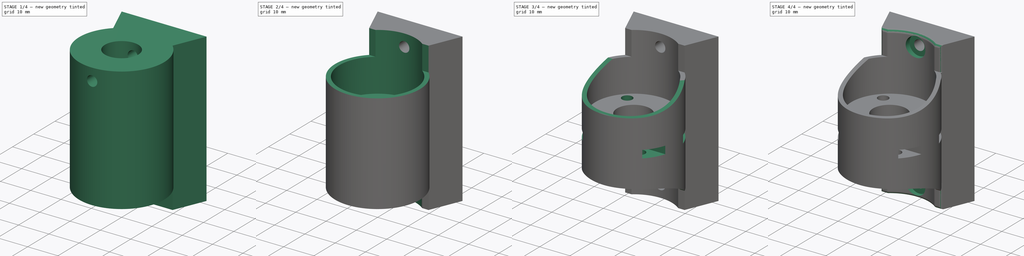
[diagram: build sequence overview — one tinted view per stage of 4, left to right]
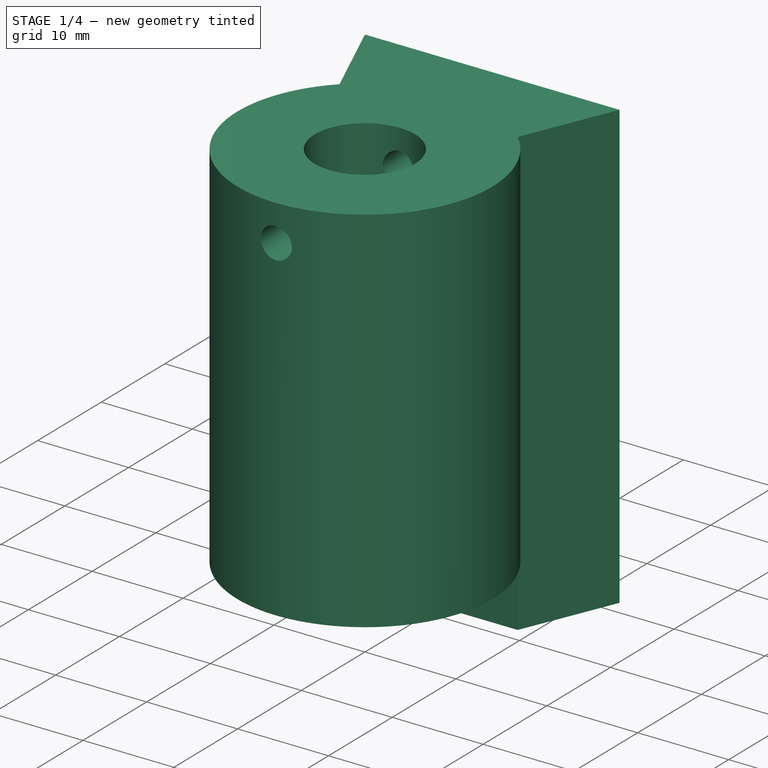
[diagram: stage 1 of 4 — iso view after this stage's code; geometry added in this stage tinted green]
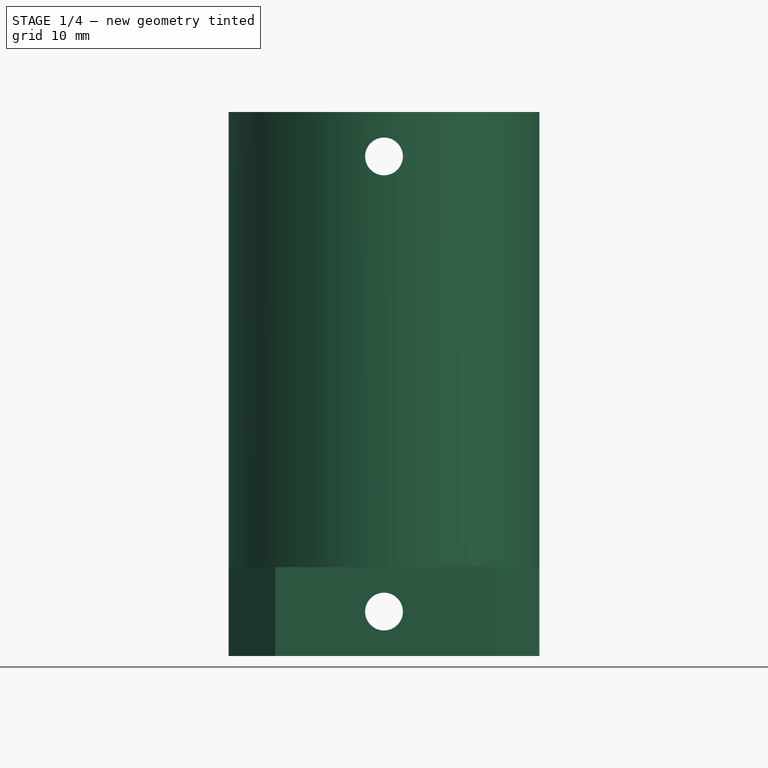
[diagram: stage 1 of 4 — front view after this stage's code; geometry added in this stage tinted green]
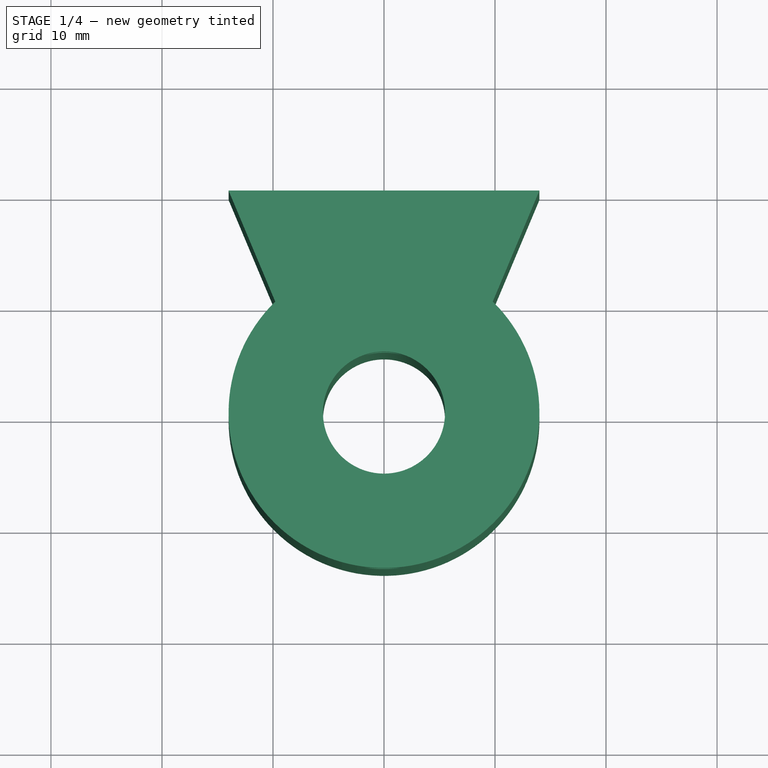
[diagram: stage 1 of 4 — top view after this stage's code; geometry added in this stage tinted green]
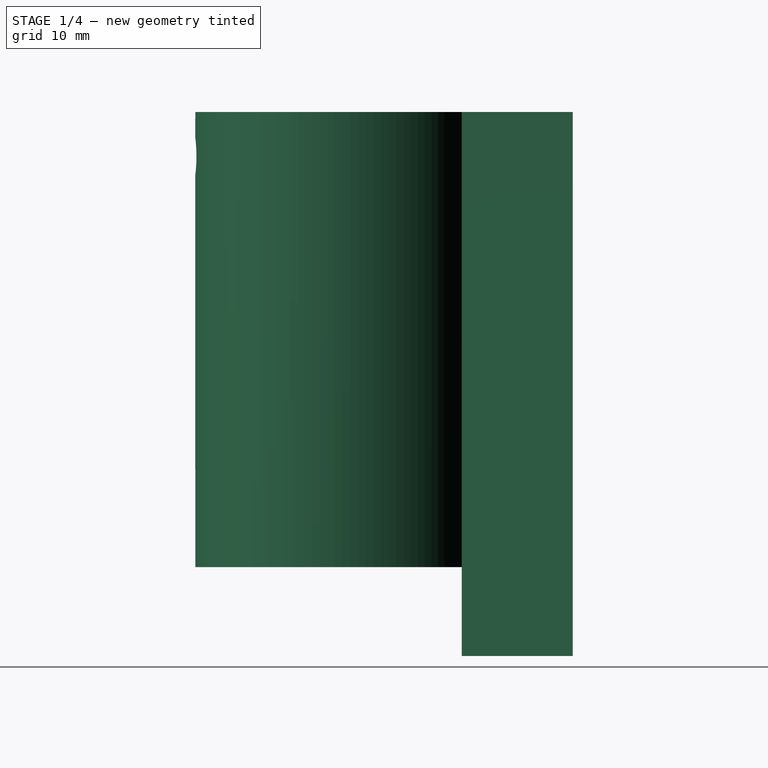
[diagram: stage 1 of 4 — right view after this stage's code; geometry added in this stage tinted green]
FCSTD DOCUMENT  (FreeCAD 0.19R21938 (Git))
Label: carriage-adapter
License: All rights reserved
LicenseURL: http://en.wikipedia.org/wiki/All_rights_reserved
objects: Sketcher::SketchObject×11, PartDesign::Pocket×9, PartDesign::Fillet×2, PartDesign::Pad×1, PartDesign::Body×1
note: 36 computed .brp shape members not serialized (recipe doc carries the construction recipe); baked Part::Feature solids carry a one-line shape summary decoded from their .brp

FEATURE [Sketcher::SketchObject] Sketch018
  AttachmentOffset = pos=(0,0,-50) rot=(0,0,1;0rad)
  MapMode = 5
  Placement = pos=(-50,1.11e-14,-1.11e-14) rot=(0.57735,0.57735,0.57735;2.0944rad)
  Support = -> [YZ_Plane001]
  sketch-geometry (10):
    g0: ArcOfCircle CenterX=-13 CenterY=68.0833 CenterZ=0 NormalX=0 NormalY=0 NormalZ=1 AngleXU=0 Radius=33.0833 StartAngle=0.802079 EndAngle=5.48111
    g1: GeomPoint X=-13 Y=30 Z=0
    g2: GeomPoint X=11 Y=41 Z=0
    g3: GeomPoint X=-13 Y=35 Z=0
    g4: GeomPoint X=6 Y=41 Z=0
    g5: ArcOfCircle CenterX=-13 CenterY=-19.0833 CenterZ=0 NormalX=0 NormalY=0 NormalZ=1 AngleXU=0 Radius=33.0833 StartAngle=0.802079 EndAngle=5.48111
    g6: GeomPoint X=-13 Y=19 Z=0
    g7: GeomPoint X=-13 Y=14 Z=0
    g8: LineSegment StartX=10 StartY=44.3029 StartZ=0 EndX=10 EndY=91.8637 EndZ=0
    g9: LineSegment StartX=10 StartY=4.69706 StartZ=0 EndX=10 EndY=-42.8637 EndZ=0
  constraints (27):
    c: DistanceY(g1,g2) = 11
    c: DistanceX(g1,g2) = 24
    c: DistanceX(g0,g1) = 0
    c: PointOnObject(g3,g0)
    c: DistanceX(g3,g1) = 0
    c: DistanceY(g1,g3) = 5
    c: PointOnObject(g4,g0)
    c: DistanceY(g4,g2) = 0
    c: DistanceX(g4,g2) = 5
    c: DistanceX(g5,g0) = 0
    c: Equal(g5,g0)
    c: DistanceX(g6,g1) = 0
    c: DistanceY(g6,g1) = 11
    c: PointOnObject(g7,g5)
    c: DistanceY(g7,g6) = 5
    c: DistanceX(g6,g7) = 0
    c: Vertical(g8)
    c: Coincident(g0,g8)
    c: Coincident(g0,g8)
    c: Coincident(g0,g8)
    c: DistanceX(g3,g0) = 23
    c: Vertical(g9)
    c: Coincident(g5,g9)
    c: Coincident(g5,g9)
    c: DistanceX(g5,g0) = 0
    c: DistanceX(g-1,g5) = 10
    c: DistanceY(g-1,g6) = 19
FEATURE [Sketcher::SketchObject] Sketch007
  MapMode = 5
  Support = -> [XY_Plane001]
  sketch-geometry (6):
    g0: GeomPoint X=0 Y=0 Z=0
    g1: ArcOfCircle CenterX=0 CenterY=0 CenterZ=0 NormalX=0 NormalY=0 NormalZ=1 AngleXU=0 Radius=14 StartAngle=2.34599 EndAngle=7.07879
    g2: LineSegment StartX=-14 StartY=20 StartZ=0 EndX=14 EndY=20 EndZ=0
    g3: LineSegment StartX=-14 StartY=20 StartZ=0 EndX=-9.79796 EndY=10 EndZ=0
    g4: LineSegment StartX=14 StartY=20 StartZ=0 EndX=9.79796 EndY=10 EndZ=0
    g5: Circle CenterX=0 CenterY=0 CenterZ=0 NormalX=0 NormalY=0 NormalZ=1 AngleXU=0 Radius=5.5
  constraints (16):
    c: Coincident(g1,g0)
    c: Diameter(g1) = 28
    c: Horizontal(g2)
    c: DistanceX(g2,g2) = 28
    c: DistanceX(g2,g0) = 14
    c: Coincident(g3,g2)
    c: Coincident(g4,g2)
    c: Coincident(g1,g3)
    c: Coincident(g1,g4)
    c: DistanceY(g1,g1) = 0
    c: Coincident(g5,g0)
    c: Diameter(g5) = 11
    c: DistanceY(g1,g2) = 10
    c: PointOnObject(g0,g-1)
    c: PointOnObject(g0,g-2)
    c: DistanceY(g0,g2) = 20
FEATURE [PartDesign::Pad] Pad001
  AllowMultiFace = false
  Length = 49
  Length2 = 100
  Profile = -> Sketch007
  Type = 0
FEATURE [Sketcher::SketchObject] Sketch008
  MapMode = 5
  Support = -> [XY_Plane001]
  sketch-geometry (1):
    g0: Circle CenterX=0 CenterY=0 CenterZ=0 NormalX=0 NormalY=0 NormalZ=1 AngleXU=0 Radius=12.625
  constraints (2):
    c: Diameter(g0) = 25.25
    c: Coincident(g-1,g0)
FEATURE [Sketcher::SketchObject] Sketch009
  AttachmentOffset = pos=(0,0,49) rot=(0,0,1;0rad)
  MapMode = 5
  Placement = pos=(0,0,49) rot=(0,0,1;0rad)
  Support = -> [XY_Plane001]
  sketch-geometry (1):
    g0: Circle CenterX=0 CenterY=0 CenterZ=0 NormalX=0 NormalY=0 NormalZ=1 AngleXU=0 Radius=12.625
  constraints (2):
    c: Diameter(g0) = 25.25
    c: Coincident(g-1,g0)
FEATURE [Sketcher::SketchObject] Sketch010
  AttachmentOffset = pos=(0,0,-50) rot=(0,0,1;0rad)
  MapMode = 5
  Placement = pos=(0,50,1.11e-14) rot=(1,0,0;1.5708rad)
  Support = -> [XZ_Plane001]
  sketch-geometry (2):
    g0: Circle CenterX=0 CenterY=4 CenterZ=0 NormalX=0 NormalY=0 NormalZ=1 AngleXU=0 Radius=1.7
    g1: Circle CenterX=0 CenterY=45 CenterZ=0 NormalX=0 NormalY=0 NormalZ=1 AngleXU=0 Radius=1.7
  constraints (6):
    c: DistanceX(g1,g0) = 0
    c: Diameter(g0) = 3.4
    c: Equal(g1,g0)
    c: DistanceX(g-1,g0) = 0
    c: DistanceY(g0,g1) = 41
    c: DistanceY(g-1,g0) = 4
FEATURE [PartDesign::Pocket] Pocket007
  AllowMultiFace = false
  BaseFeature = -> Pad001
  Length = 5
  Length2 = 100
  Profile = -> Sketch010
  Reversed = true
  Type = 1
FEATURE [Sketcher::SketchObject] Sketch012
  MapMode = 5
  Support = -> [XY_Plane001]
  sketch-geometry (2):
    g0: ArcOfCircle CenterX=0 CenterY=0 CenterZ=0 NormalX=0 NormalY=0 NormalZ=1 AngleXU=0 Radius=14 StartAngle=2.34599 EndAngle=7.07879
    g1: LineSegment StartX=-9.79796 StartY=10 StartZ=0 EndX=9.79796 EndY=10 EndZ=0
  constraints (6):
    c: Diameter(g0) = 28
    c: Horizontal(g1)
    c: Coincident(g0,g1)
    c: Coincident(g0,g1)
    c: DistanceY(g0,g0) = 10
    c: Coincident(g-1,g0)
FEATURE [PartDesign::Pocket] Pocket008
  AllowMultiFace = false
  BaseFeature = -> Pocket007
  Length = 8
  Length2 = 100
  Profile = -> Sketch012
  Reversed = true
  Type = 0
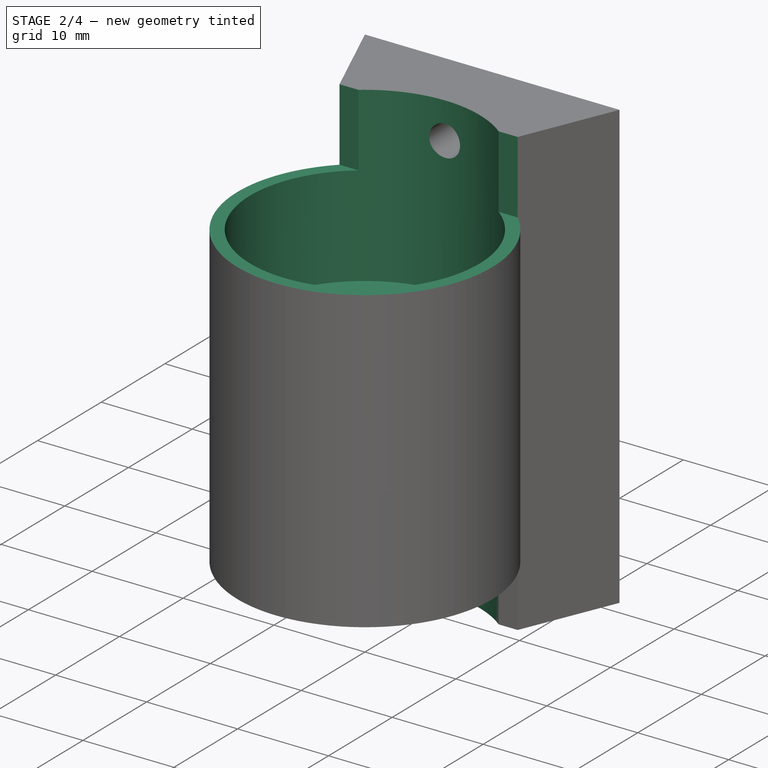
[diagram: stage 2 of 4 — iso view after this stage's code; geometry added in this stage tinted green]
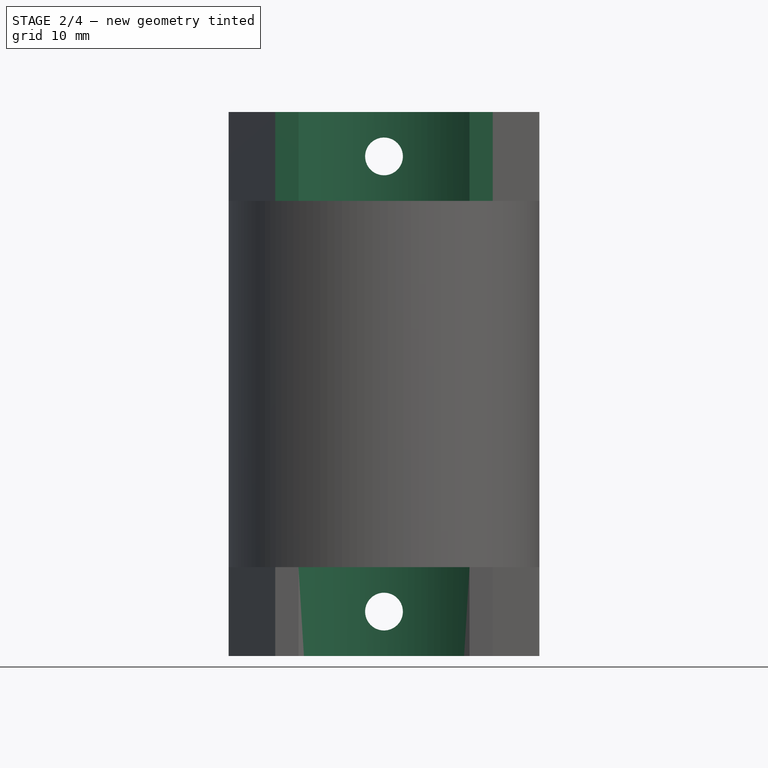
[diagram: stage 2 of 4 — front view after this stage's code; geometry added in this stage tinted green]
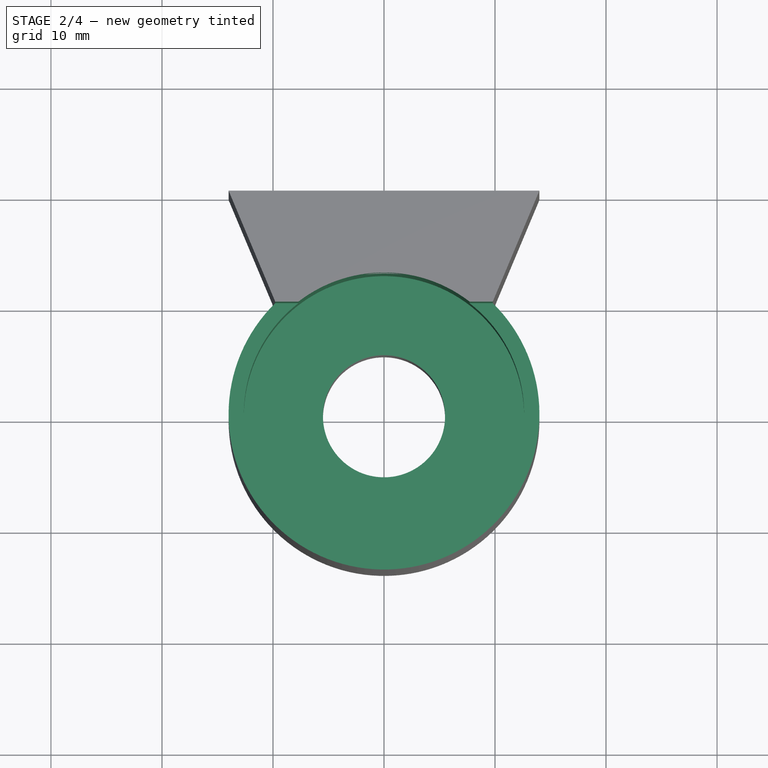
[diagram: stage 2 of 4 — top view after this stage's code; geometry added in this stage tinted green]
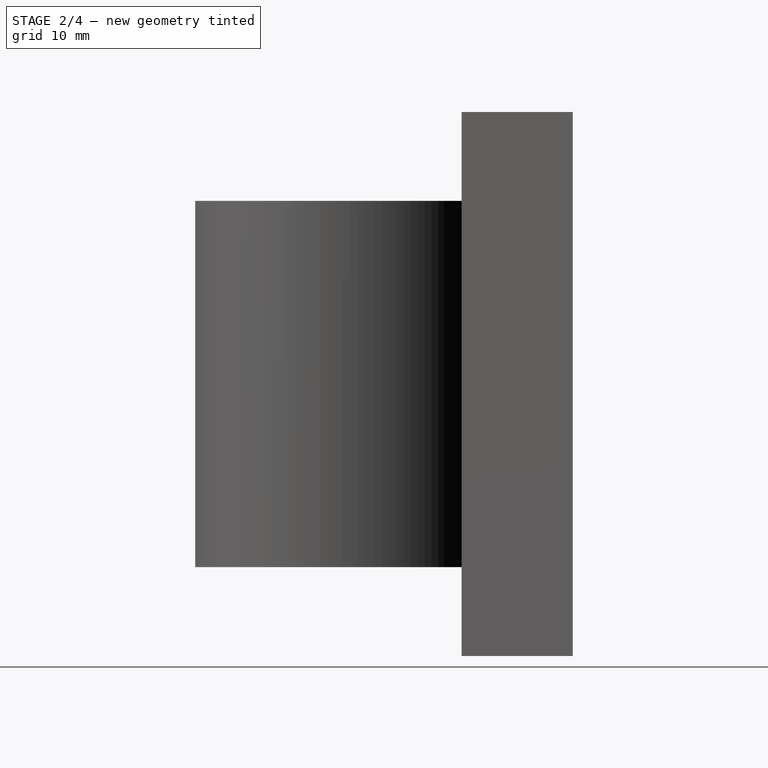
[diagram: stage 2 of 4 — right view after this stage's code; geometry added in this stage tinted green]
FEATURE [Sketcher::SketchObject] Sketch013
  AttachmentOffset = pos=(0,0,49) rot=(0,0,1;0rad)
  MapMode = 5
  Placement = pos=(0,0,49) rot=(0,0,1;0rad)
  Support = -> [XY_Plane001]
  sketch-geometry (2):
    g0: ArcOfCircle CenterX=0 CenterY=0 CenterZ=0 NormalX=0 NormalY=0 NormalZ=1 AngleXU=0 Radius=14 StartAngle=2.34599 EndAngle=7.07879
    g1: LineSegment StartX=-9.79796 StartY=10 StartZ=0 EndX=9.79796 EndY=10 EndZ=0
  constraints (6):
    c: Diameter(g0) = 28
    c: Horizontal(g1)
    c: Coincident(g0,g1)
    c: Coincident(g0,g1)
    c: DistanceY(g0,g0) = 10
    c: Coincident(g-1,g0)
FEATURE [PartDesign::Pocket] Pocket009
  AllowMultiFace = false
  BaseFeature = -> Pocket008
  Length = 8
  Length2 = 100
  Profile = -> Sketch013
  Type = 0
FEATURE [PartDesign::Pocket] Pocket010
  AllowMultiFace = false
  BaseFeature = -> Pocket009
  Length = 19
  Length2 = 100
  Profile = -> Sketch008
  Reversed = true
  Type = 0
FEATURE [PartDesign::Pocket] Pocket011
  AllowMultiFace = false
  BaseFeature = -> Pocket010
  Length = 19
  Length2 = 100
  Profile = -> Sketch009
  Type = 0
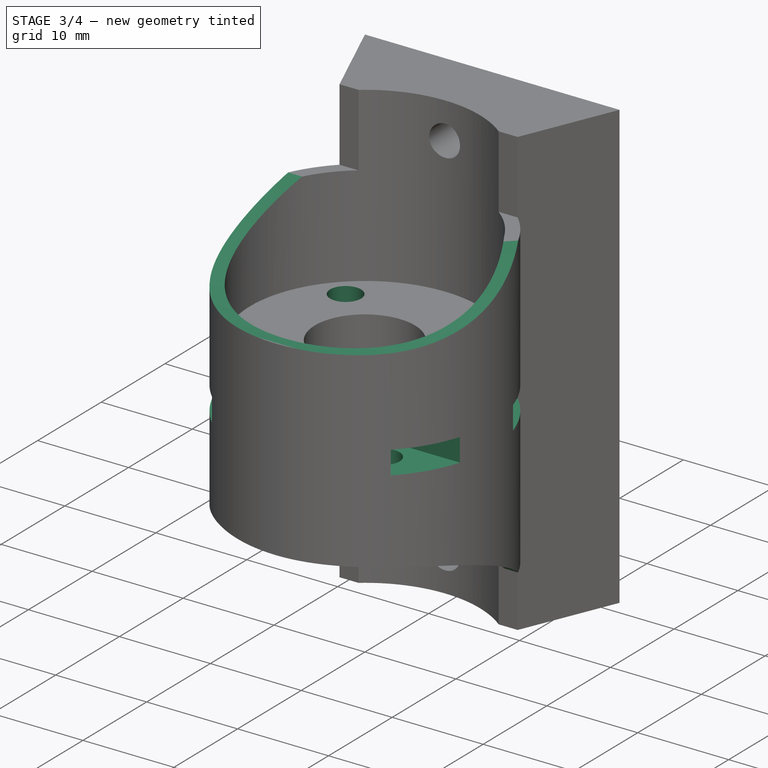
[diagram: stage 3 of 4 — iso view after this stage's code; geometry added in this stage tinted green]
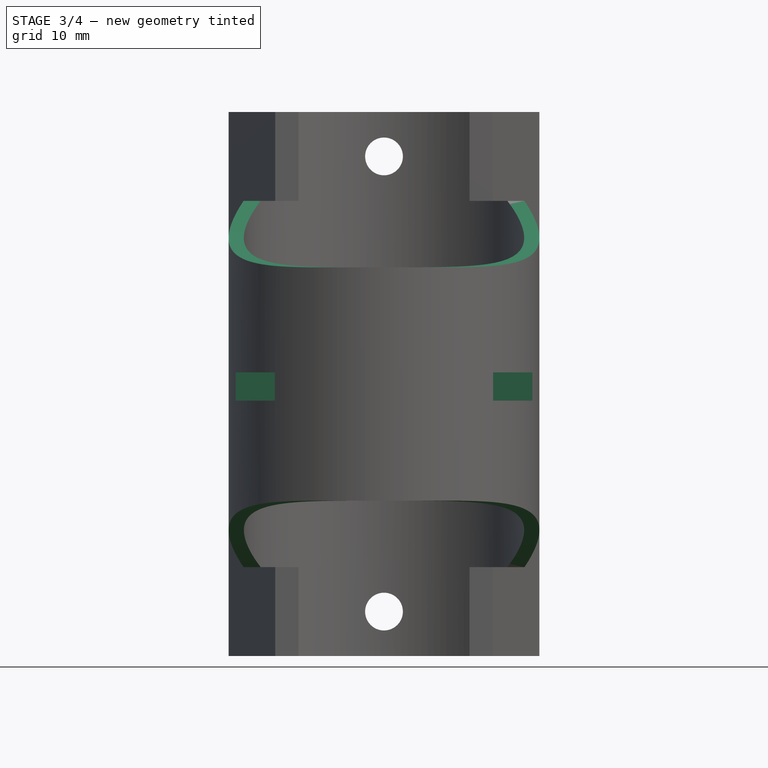
[diagram: stage 3 of 4 — front view after this stage's code; geometry added in this stage tinted green]
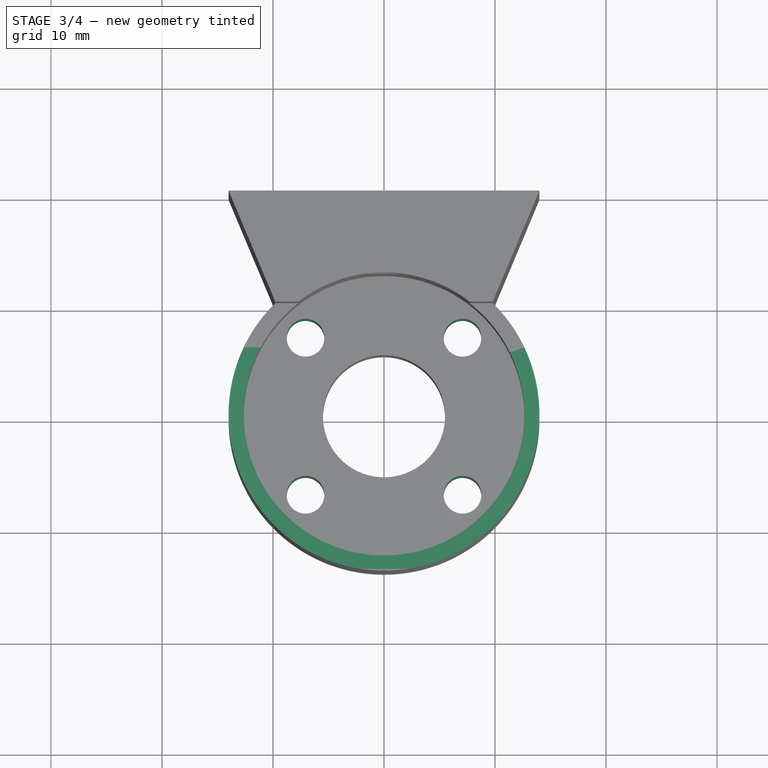
[diagram: stage 3 of 4 — top view after this stage's code; geometry added in this stage tinted green]
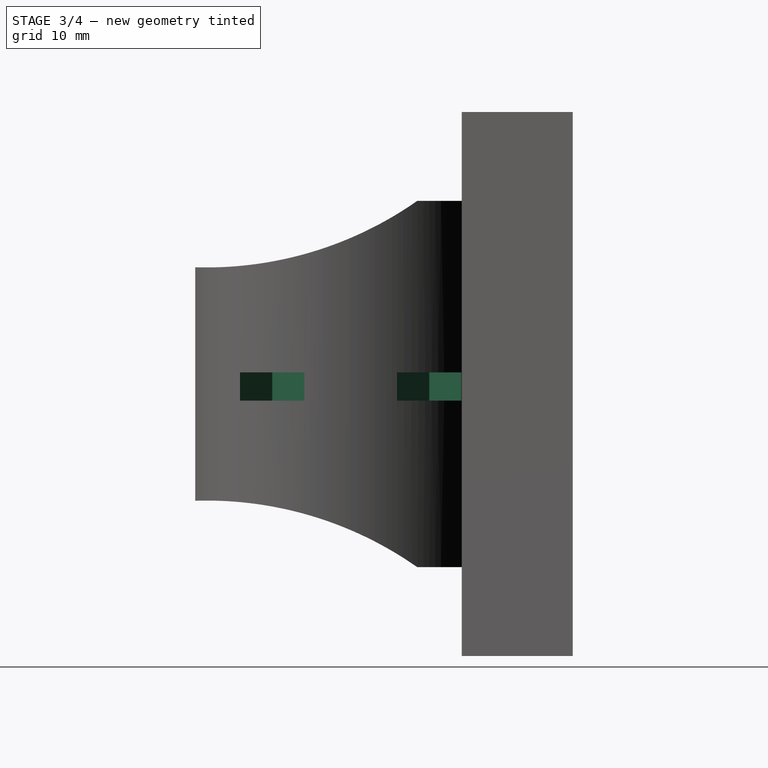
[diagram: stage 3 of 4 — right view after this stage's code; geometry added in this stage tinted green]
FEATURE [Sketcher::SketchObject] Sketch014
  AttachmentOffset = pos=(0,0,-12) rot=(0,0,1;0rad)
  MapMode = 5
  Placement = pos=(0,12,2.7e-15) rot=(1,0,0;1.5708rad)
  Support = -> [XZ_Plane001]
  sketch-geometry (2):
    g0: Circle CenterX=0 CenterY=4 CenterZ=0 NormalX=0 NormalY=0 NormalZ=1 AngleXU=0 Radius=3.25
    g1: Circle CenterX=0 CenterY=45 CenterZ=0 NormalX=0 NormalY=0 NormalZ=1 AngleXU=0 Radius=3.25
  constraints (6):
    c: DistanceX(g1,g0) = 0
    c: Diameter(g0) = 6.5
    c: Equal(g1,g0)
    c: DistanceX(g-1,g0) = 0
    c: DistanceY(g0,g1) = 41
    c: DistanceY(g-1,g0) = 4
FEATURE [Sketcher::SketchObject] Sketch015
  MapMode = 5
  Support = -> [XY_Plane001]
  sketch-geometry (11):
    g0: Circle [constr] CenterX=0 CenterY=0 CenterZ=0 NormalX=0 NormalY=0 NormalZ=1 AngleXU=0 Radius=10
    g1: LineSegment [constr] StartX=0 StartY=0 StartZ=0 EndX=-7.07107 EndY=7.07107 EndZ=0
    g2: LineSegment [constr] StartX=0 StartY=0 StartZ=0 EndX=-10 EndY=0 EndZ=0
    g3: Circle CenterX=-7.07107 CenterY=7.07107 CenterZ=0 NormalX=0 NormalY=0 NormalZ=1 AngleXU=0 Radius=1.7
    g4: LineSegment [constr] StartX=0 StartY=0 StartZ=0 EndX=7.07107 EndY=-7.07107 EndZ=0
    g5: LineSegment [constr] StartX=0 StartY=0 StartZ=0 EndX=-7.07107 EndY=-7.07107 EndZ=0
    g6: LineSegment [constr] StartX=0 StartY=0 StartZ=0 EndX=7.07107 EndY=7.07107 EndZ=0
    g7: Circle CenterX=-7.07107 CenterY=-7.07107 CenterZ=0 NormalX=0 NormalY=0 NormalZ=1 AngleXU=0 Radius=1.7
    g8: Circle CenterX=7.07107 CenterY=-7.07107 CenterZ=0 NormalX=0 NormalY=0 NormalZ=1 AngleXU=0 Radius=1.7
    g9: Circle CenterX=7.07107 CenterY=7.07107 CenterZ=0 NormalX=0 NormalY=0 NormalZ=1 AngleXU=0 Radius=1.7
    g10: LineSegment [constr] StartX=0 StartY=0 StartZ=0 EndX=10 EndY=0 EndZ=0
  constraints (29):
    c: Diameter(g0) = 20
    c: Coincident(g1,g0)
    c: PointOnObject(g1,g0)
    c: Coincident(g2,g0)
    c: Horizontal(g2)
    c: Angle(g1,g2) = 0.785398
    c: Coincident(g4,g0)
    c: PointOnObject(g4,g0)
    c: Coincident(g5,g4)
    c: PointOnObject(g5,g0)
    c: Coincident(g6,g4)
    c: PointOnObject(g6,g0)
    c: Angle(g2,g5) = 0.785398
    c: Coincident(g7,g5)
    c: Coincident(g8,g4)
    c: Coincident(g9,g6)
    c: Diameter(g3) = 3.4
    c: Equal(g9,g3)
    c: Equal(g7,g3)
    c: Equal(g8,g3)
    c: Coincident(g10,g0)
    c: PointOnObject(g10,g0)
    c: Horizontal(g10)
    c: Angle(g10,g6) = 0.785398
    c: Angle(g4,g10) = 0.785398
    c: Coincident(g1,g3)
    c: PointOnObject(g2,g0)
    c: PointOnObject(g0,g-2)
    c: PointOnObject(g0,g-1)
FEATURE [PartDesign::Pocket] Pocket013
  AllowMultiFace = false
  BaseFeature = -> Pocket011
  Length = 5
  Length2 = 100
  Profile = -> Sketch015
  Reversed = true
  Type = 1
FEATURE [Sketcher::SketchObject] Sketch016
  AttachmentOffset = pos=(0,0,23) rot=(0,0,1;0rad)
  MapMode = 5
  Placement = pos=(0,0,23) rot=(0,0,1;0rad)
  Support = -> [XY_Plane001]
  sketch-geometry (36):
    g0: Circle [constr] CenterX=0 CenterY=0 CenterZ=0 NormalX=0 NormalY=0 NormalZ=1 AngleXU=0 Radius=10
    g1: LineSegment [constr] StartX=-7.07107 StartY=-7.07107 StartZ=0 EndX=7.07107 EndY=7.07107 EndZ=0
    g2: LineSegment [constr] StartX=-7.07107 StartY=7.07107 StartZ=0 EndX=7.07107 EndY=-7.07107 EndZ=0
    g3: LineSegment [constr] StartX=0 StartY=0 StartZ=0 EndX=10 EndY=0 EndZ=0
    g4: LineSegment StartX=-5.39607 StartY=9.97225 StartZ=0 EndX=-8.74607 EndY=9.97225 EndZ=0
    g5: LineSegment StartX=-8.74607 StartY=4.16988 StartZ=0 EndX=-5.39607 EndY=4.16988 EndZ=0
    g6: LineSegment StartX=-5.39607 StartY=4.16988 StartZ=0 EndX=-3.72107 EndY=7.07107 EndZ=0
    g7: LineSegment StartX=-3.72107 StartY=7.07107 StartZ=0 EndX=-5.39607 EndY=9.97225 EndZ=0
    g8: Circle [constr] CenterX=-7.07107 CenterY=7.07107 CenterZ=0 NormalX=0 NormalY=0 NormalZ=1 AngleXU=0 Radius=3.35
    g9: LineSegment StartX=-8.74607 StartY=9.97225 StartZ=0 EndX=-16.7461 EndY=9.97225 EndZ=0
    g10: LineSegment StartX=-8.74607 StartY=4.16988 StartZ=0 EndX=-16.7461 EndY=4.16988 EndZ=0
    g11: LineSegment StartX=-16.7461 StartY=9.97225 StartZ=0 EndX=-16.7461 EndY=4.16988 EndZ=0
    g12: LineSegment StartX=-5.39607 StartY=-4.16988 StartZ=0 EndX=-8.74607 EndY=-4.16988 EndZ=0
    g13: LineSegment StartX=-8.74607 StartY=-9.97225 StartZ=0 EndX=-5.39607 EndY=-9.97225 EndZ=0
    g14: LineSegment StartX=-5.39607 StartY=-9.97225 StartZ=0 EndX=-3.72107 EndY=-7.07107 EndZ=0
    g15: LineSegment StartX=-3.72107 StartY=-7.07107 StartZ=0 EndX=-5.39607 EndY=-4.16988 EndZ=0
    g16: Circle [constr] CenterX=-7.07107 CenterY=-7.07107 CenterZ=0 NormalX=0 NormalY=0 NormalZ=1 AngleXU=0 Radius=3.35
    g17: LineSegment StartX=-8.74607 StartY=-4.16988 StartZ=0 EndX=-16.7461 EndY=-4.16988 EndZ=0
    g18: LineSegment StartX=-8.74607 StartY=-9.97225 StartZ=0 EndX=-16.7461 EndY=-9.97225 EndZ=0
    g19: LineSegment StartX=-16.7461 StartY=-4.16988 StartZ=0 EndX=-16.7461 EndY=-9.97225 EndZ=0
    g20: LineSegment StartX=8.74607 StartY=9.97225 StartZ=0 EndX=5.39607 EndY=9.97225 EndZ=0
    g21: LineSegment StartX=5.39607 StartY=9.97225 StartZ=0 EndX=3.72107 EndY=7.07107 EndZ=0
    g22: LineSegment StartX=3.72107 StartY=7.07107 StartZ=0 EndX=5.39607 EndY=4.16988 EndZ=0
    g23: LineSegment StartX=5.39607 StartY=4.16988 StartZ=0 EndX=8.74607 EndY=4.16988 EndZ=0
    g24: Circle [constr] CenterX=7.07107 CenterY=7.07107 CenterZ=0 NormalX=0 NormalY=0 NormalZ=1 AngleXU=0 Radius=3.35
    g25: LineSegment StartX=8.74607 StartY=9.97225 StartZ=0 EndX=16.7461 EndY=9.97225 EndZ=0
    g26: LineSegment StartX=16.7461 StartY=9.97225 StartZ=0 EndX=16.7461 EndY=4.16988 EndZ=0
    g27: LineSegment StartX=8.74607 StartY=4.16988 StartZ=0 EndX=16.7461 EndY=4.16988 EndZ=0
    g28: LineSegment StartX=8.74607 StartY=-4.16988 StartZ=0 EndX=5.39607 EndY=-4.16988 EndZ=0
    g29: LineSegment StartX=5.39607 StartY=-4.16988 StartZ=0 EndX=3.72107 EndY=-7.07107 EndZ=0
    g30: LineSegment StartX=3.72107 StartY=-7.07107 StartZ=0 EndX=5.39607 EndY=-9.97225 EndZ=0
    g31: LineSegment StartX=5.39607 StartY=-9.97225 StartZ=0 EndX=8.74607 EndY=-9.97225 EndZ=0
    g32: Circle [constr] CenterX=7.07107 CenterY=-7.07107 CenterZ=0 NormalX=0 NormalY=0 NormalZ=1 AngleXU=0 Radius=3.35
    g33: LineSegment StartX=8.74607 StartY=-4.16988 StartZ=0 EndX=16.7461 EndY=-4.16988 EndZ=0
    g34: LineSegment StartX=16.7461 StartY=-4.16988 StartZ=0 EndX=16.7461 EndY=-9.97225 EndZ=0
    g35: LineSegment StartX=16.7461 StartY=-9.97225 StartZ=0 EndX=8.74607 EndY=-9.97225 EndZ=0
  constraints (106):
    c: Diameter(g0) = 20
    c: PointOnObject(g1,g0)
    c: PointOnObject(g1,g0)
    c: PointOnObject(g2,g0)
    c: PointOnObject(g2,g0)
    c: PointOnObject(g0,g2)
    c: PointOnObject(g0,g1)
    c: Angle(g2,g1) = 1.5708
    c: Coincident(g3,g0)
    c: PointOnObject(g3,g0)
    c: Horizontal(g3)
    c: Angle(g3,g1) = 0.785398
    c: Coincident(g5,g6)
    c: Coincident(g6,g7)
    c: Coincident(g7,g4)
    c: Equal(g4,g5)
    c: Equal(g4,g6)
    c: Equal(g4,g7)
    c: PointOnObject(g4,g8)
    c: PointOnObject(g5,g8)
    c: PointOnObject(g5,g8)
    c: PointOnObject(g6,g8)
    c: PointOnObject(g7,g8)
    c: Coincident(g8,g2)
    c: Horizontal(g4)
    c: Horizontal(g9)
    c: Horizontal(g10)
    c: Coincident(g4,g9)
    c: Coincident(g11,g9)
    c: Coincident(g11,g10)
    c: Vertical(g11)
    c: Diameter(g8) = 6.7
    c: Coincident(g5,g10)
    c: Horizontal(g5)
    c: DistanceX(g10,g10) = 8
    c: Coincident(g13,g14)
    c: Coincident(g14,g15)
    c: Coincident(g15,g12)
    c: Equal(g12,g13)
    c: Equal(g12,g14)
    c: Equal(g12,g15)
    c: PointOnObject(g12,g16)
    c: PointOnObject(g13,g16)
    c: PointOnObject(g13,g16)
    c: PointOnObject(g14,g16)
    c: PointOnObject(g15,g16)
    c: Horizontal(g12)
    c: Horizontal(g17)
    c: Horizontal(g18)
    c: Coincident(g12,g17)
    c: Coincident(g19,g17)
    c: Coincident(g19,g18)
    c: Vertical(g19)
    c: Equal(g8,g16) = 6.7
    c: Coincident(g13,g18)
    c: Horizontal(g13)
    c: Equal(g10,g18) = 8
    c: Coincident(g16,g1)
    c: Coincident(g20,g21)
    c: Coincident(g21,g22)
    c: Coincident(g22,g23)
    c: PointOnObject(g20,g24)
    c: PointOnObject(g20,g24)
    c: PointOnObject(g21,g24)
    c: PointOnObject(g22,g24)
    c: PointOnObject(g23,g24)
    c: Coincident(g24,g1)
    c: Horizontal(g20)
    c: Equal(g8,g24)
    c: Horizontal(g25)
    c: Coincident(g26,g25)
    c: Coincident(g27,g23)
    c: Coincident(g27,g26)
    c: Horizontal(g27)
    c: Vertical(g26)
    c: Equal(g27,g10)
    c: Coincident(g20,g25)
    c: Horizontal(g23)
    c: Equal(g21,g20)
    c: Equal(g21,g22)
    c: Equal(g23,g22)
    c: Coincident(g28,g29)
    c: Coincident(g29,g30)
    c: Coincident(g30,g31)
    c: PointOnObject(g28,g32)
    c: PointOnObject(g28,g32)
    c: PointOnObject(g29,g32)
    c: PointOnObject(g30,g32)
    c: PointOnObject(g31,g32)
    c: Coincident(g32,g2)
    c: Horizontal(g33)
    c: Coincident(g34,g33)
    c: Vertical(g34)
    c: Coincident(g35,g31)
    c: Horizontal(g35)
    c: Coincident(g34,g35)
    c: Horizontal(g28)
    c: Equal(g8,g32)
    c: Coincident(g28,g33)
    c: Equal(g10,g35)
    c: Horizontal(g31)
    c: Equal(g28,g29)
    c: Equal(g29,g30)
    c: Equal(g30,g31)
    c: PointOnObject(g0,g-2)
    c: PointOnObject(g0,g-1)
FEATURE [PartDesign::Pocket] Pocket014
  AllowMultiFace = false
  BaseFeature = -> Pocket013
  Length = 2.55
  Length2 = 100
  Profile = -> Sketch016
  Reversed = true
  Type = 0
FEATURE [PartDesign::Pocket] Pocket015
  AllowMultiFace = false
  BaseFeature = -> Pocket014
  Length = 5
  Length2 = 100
  Profile = -> Sketch018
  Reversed = true
  Type = 1
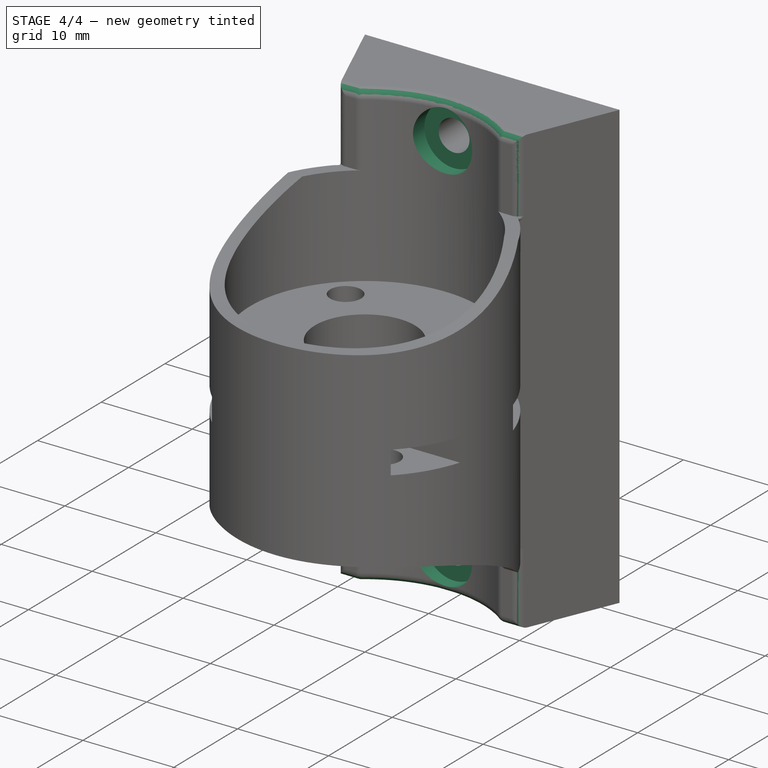
[diagram: stage 4 of 4 — iso view after this stage's code; geometry added in this stage tinted green]
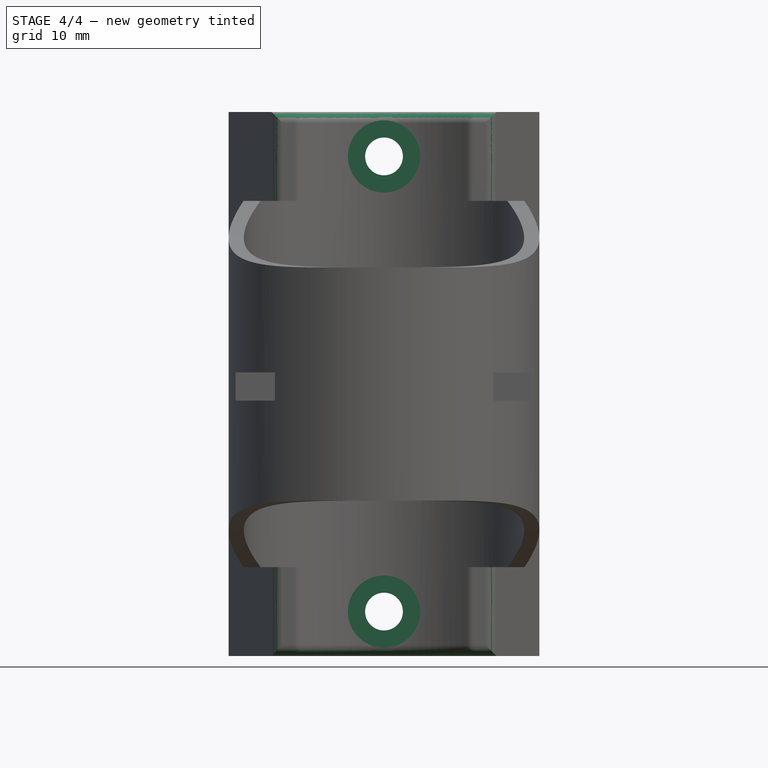
[diagram: stage 4 of 4 — front view after this stage's code; geometry added in this stage tinted green]
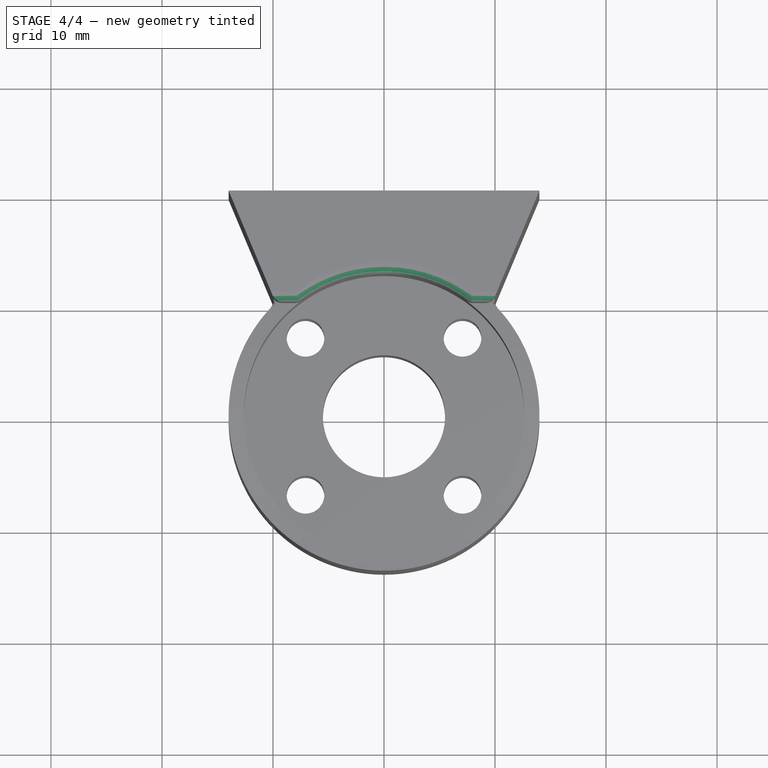
[diagram: stage 4 of 4 — top view after this stage's code; geometry added in this stage tinted green]
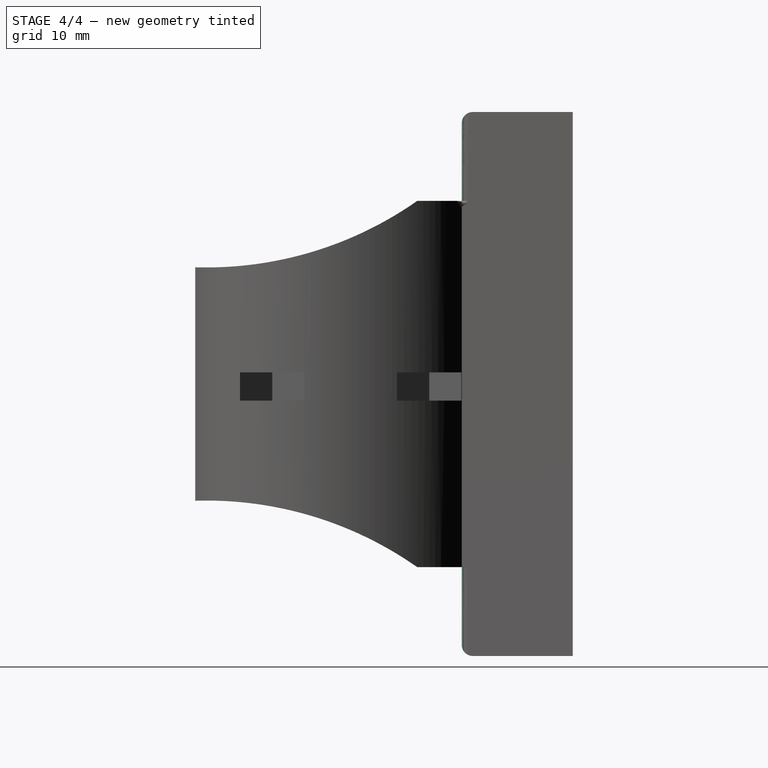
[diagram: stage 4 of 4 — right view after this stage's code; geometry added in this stage tinted green]
FEATURE [Sketcher::SketchObject] Sketch017
  AttachmentOffset = pos=(0,0,119) rot=(0,0,1;0rad)
  MapMode = 5
  Placement = pos=(0,0,119) rot=(0,0,1;0rad)
  Support = -> [XY_Plane001]
  sketch-geometry (36):
    g0: Circle [constr] CenterX=185.5 CenterY=-193 CenterZ=0 NormalX=0 NormalY=0 NormalZ=1 AngleXU=0 Radius=8
    g1: LineSegment [constr] StartX=179.843 StartY=-198.657 StartZ=0 EndX=191.157 EndY=-187.343 EndZ=0
    g2: LineSegment [constr] StartX=179.843 StartY=-187.343 StartZ=0 EndX=191.157 EndY=-198.657 EndZ=0
    g3: LineSegment [constr] StartX=185.5 StartY=-193 StartZ=0 EndX=193.5 EndY=-193 EndZ=0
    g4: LineSegment StartX=181.518 StartY=-184.442 StartZ=0 EndX=178.168 EndY=-184.442 EndZ=0
    g5: LineSegment StartX=178.168 StartY=-190.244 StartZ=0 EndX=181.518 EndY=-190.244 EndZ=0
    g6: LineSegment StartX=181.518 StartY=-190.244 StartZ=0 EndX=183.193 EndY=-187.343 EndZ=0
    g7: LineSegment StartX=183.193 StartY=-187.343 StartZ=0 EndX=181.518 EndY=-184.442 EndZ=0
    g8: Circle [constr] CenterX=179.843 CenterY=-187.343 CenterZ=0 NormalX=0 NormalY=0 NormalZ=1 AngleXU=0 Radius=3.35
    g9: LineSegment StartX=178.168 StartY=-184.442 StartZ=0 EndX=170.168 EndY=-184.442 EndZ=0
    g10: LineSegment StartX=178.168 StartY=-190.244 StartZ=0 EndX=170.168 EndY=-190.244 EndZ=0
    g11: LineSegment StartX=170.168 StartY=-184.442 StartZ=0 EndX=170.168 EndY=-190.244 EndZ=0
    g12: LineSegment StartX=181.518 StartY=-195.756 StartZ=0 EndX=178.168 EndY=-195.756 EndZ=0
    g13: LineSegment StartX=178.168 StartY=-201.558 StartZ=0 EndX=181.518 EndY=-201.558 EndZ=0
    g14: LineSegment StartX=181.518 StartY=-201.558 StartZ=0 EndX=183.193 EndY=-198.657 EndZ=0
    g15: LineSegment StartX=183.193 StartY=-198.657 StartZ=0 EndX=181.518 EndY=-195.756 EndZ=0
    g16: Circle [constr] CenterX=179.843 CenterY=-198.657 CenterZ=0 NormalX=0 NormalY=0 NormalZ=1 AngleXU=0 Radius=3.35
    g17: LineSegment StartX=178.168 StartY=-195.756 StartZ=0 EndX=170.168 EndY=-195.756 EndZ=0
    g18: LineSegment StartX=178.168 StartY=-201.558 StartZ=0 EndX=170.168 EndY=-201.558 EndZ=0
    g19: LineSegment StartX=170.168 StartY=-195.756 StartZ=0 EndX=170.168 EndY=-201.558 EndZ=0
    g20: LineSegment StartX=192.832 StartY=-184.442 StartZ=0 EndX=189.482 EndY=-184.442 EndZ=0
    g21: LineSegment StartX=189.482 StartY=-184.442 StartZ=0 EndX=187.807 EndY=-187.343 EndZ=0
    g22: LineSegment StartX=187.807 StartY=-187.343 StartZ=0 EndX=189.482 EndY=-190.244 EndZ=0
    g23: LineSegment StartX=189.482 StartY=-190.244 StartZ=0 EndX=192.832 EndY=-190.244 EndZ=0
    g24: Circle [constr] CenterX=191.157 CenterY=-187.343 CenterZ=0 NormalX=0 NormalY=0 NormalZ=1 AngleXU=0 Radius=3.35
    g25: LineSegment StartX=192.832 StartY=-184.442 StartZ=0 EndX=200.832 EndY=-184.442 EndZ=0
    g26: LineSegment StartX=200.832 StartY=-184.442 StartZ=0 EndX=200.832 EndY=-190.244 EndZ=0
    g27: LineSegment StartX=192.832 StartY=-190.244 StartZ=0 EndX=200.832 EndY=-190.244 EndZ=0
    g28: LineSegment StartX=192.832 StartY=-195.756 StartZ=0 EndX=189.482 EndY=-195.756 EndZ=0
    g29: LineSegment StartX=189.482 StartY=-195.756 StartZ=0 EndX=187.807 EndY=-198.657 EndZ=0
    g30: LineSegment StartX=187.807 StartY=-198.657 StartZ=0 EndX=189.482 EndY=-201.558 EndZ=0
    g31: LineSegment StartX=189.482 StartY=-201.558 StartZ=0 EndX=192.832 EndY=-201.558 EndZ=0
    g32: Circle [constr] CenterX=191.157 CenterY=-198.657 CenterZ=0 NormalX=0 NormalY=0 NormalZ=1 AngleXU=0 Radius=3.35
    g33: LineSegment StartX=192.832 StartY=-195.756 StartZ=0 EndX=200.832 EndY=-195.756 EndZ=0
    g34: LineSegment StartX=200.832 StartY=-195.756 StartZ=0 EndX=200.832 EndY=-201.558 EndZ=0
    g35: LineSegment StartX=200.832 StartY=-201.558 StartZ=0 EndX=192.832 EndY=-201.558 EndZ=0
  constraints (106):
    c: Diameter(g0) = 16
    c: PointOnObject(g1,g0)
    c: PointOnObject(g1,g0)
    c: PointOnObject(g2,g0)
    c: PointOnObject(g2,g0)
    c: PointOnObject(g0,g2)
    c: PointOnObject(g0,g1)
    c: Angle(g2,g1) = 1.5708
    c: DistanceX(g-1,g0) = 185.5
    c: DistanceY(g0,g-1) = 193
    c: Coincident(g3,g0)
    c: PointOnObject(g3,g0)
    c: Horizontal(g3)
    c: Angle(g3,g1) = 0.785398
    c: Coincident(g5,g6)
    c: Coincident(g6,g7)
    c: Coincident(g7,g4)
    c: Equal(g4,g5)
    c: Equal(g4,g6)
    c: Equal(g4,g7)
    c: PointOnObject(g4,g8)
    c: PointOnObject(g5,g8)
    c: PointOnObject(g5,g8)
    c: PointOnObject(g6,g8)
    c: PointOnObject(g7,g8)
    c: Coincident(g8,g2)
    c: Horizontal(g4)
    c: Horizontal(g9)
    c: Horizontal(g10)
    c: Coincident(g4,g9)
    c: Coincident(g11,g9)
    c: Coincident(g11,g10)
    c: Vertical(g11)
    c: Diameter(g8) = 6.7
    c: Coincident(g5,g10)
    c: Horizontal(g5)
    c: DistanceX(g10,g10) = 8
    c: Coincident(g13,g14)
    c: Coincident(g14,g15)
    c: Coincident(g15,g12)
    c: Equal(g12,g13)
    c: Equal(g12,g14)
    c: Equal(g12,g15)
    c: PointOnObject(g12,g16)
    c: PointOnObject(g13,g16)
    c: PointOnObject(g13,g16)
    c: PointOnObject(g14,g16)
    c: PointOnObject(g15,g16)
    c: Horizontal(g12)
    c: Horizontal(g17)
    c: Horizontal(g18)
    c: Coincident(g12,g17)
    c: Coincident(g19,g17)
    c: Coincident(g19,g18)
    c: Vertical(g19)
    c: Equal(g8,g16) = 6.7
    c: Coincident(g13,g18)
    c: Horizontal(g13)
    c: Equal(g10,g18) = 8
    c: Coincident(g16,g1)
    c: Coincident(g20,g21)
    c: Coincident(g21,g22)
    c: Coincident(g22,g23)
    c: PointOnObject(g20,g24)
    c: PointOnObject(g20,g24)
    c: PointOnObject(g21,g24)
    c: PointOnObject(g22,g24)
    c: PointOnObject(g23,g24)
    c: Coincident(g24,g1)
    c: Horizontal(g20)
    c: Equal(g8,g24)
    c: Horizontal(g25)
    c: Coincident(g26,g25)
    c: Coincident(g27,g23)
    c: Coincident(g27,g26)
    c: Horizontal(g27)
    c: Vertical(g26)
    c: Equal(g27,g10)
    c: Coincident(g20,g25)
    c: Horizontal(g23)
    c: Equal(g21,g20)
    c: Equal(g21,g22)
    c: Equal(g23,g22)
    c: Coincident(g28,g29)
    c: Coincident(g29,g30)
    c: Coincident(g30,g31)
    c: PointOnObject(g28,g32)
    c: PointOnObject(g28,g32)
    c: PointOnObject(g29,g32)
    c: PointOnObject(g30,g32)
    c: PointOnObject(g31,g32)
    c: Coincident(g32,g2)
    c: Horizontal(g33)
    c: Coincident(g34,g33)
    c: Vertical(g34)
    c: Coincident(g35,g31)
    c: Horizontal(g35)
    c: Coincident(g34,g35)
    c: Horizontal(g28)
    c: Equal(g8,g32)
    c: Coincident(g28,g33)
    c: Equal(g10,g35)
    c: Horizontal(g31)
    c: Equal(g28,g29)
    c: Equal(g29,g30)
    c: Equal(g30,g31)
FEATURE [PartDesign::Pocket] Pocket
  BaseFeature = -> Pocket015
  Length = 2
  Length2 = 100
  Profile = -> Sketch014
  Type = 0
FEATURE [PartDesign::Fillet] Fillet
  Base = -> Pocket [Edge3,Edge2,Vertex3,Edge14,Edge15,Edge17,Edge51,Edge63,Edge64,Edge50,Edge55,Edge56]
  BaseFeature = -> Pocket
  Radius = 1
  SupportTransform = false
FEATURE [PartDesign::Fillet] Fillet001
  Base = -> Fillet [Edge72,Edge94,Edge91,Edge70,Edge28,Edge29,Edge30,Edge33,Edge41,Edge9,Edge7]
  BaseFeature = -> Fillet
  Radius = 1
  SupportTransform = false
FEATURE [PartDesign::Body] Body001  label="carriage-adapter"
  Group = -> [Sketch007,Pad001,Sketch008,Sketch009,Sketch010,Pocket007,Sketch012,Pocket008,Sketch013,Pocket009,Pocket010,Pocket011,Sketch014,Sketch015,Pocket013,Sketch016,Pocket014,Sketch017,Sketch018,Pocket015,Pocket,Fillet,Fillet001]
  Origin = -> Origin001
  Tip = -> Fillet001
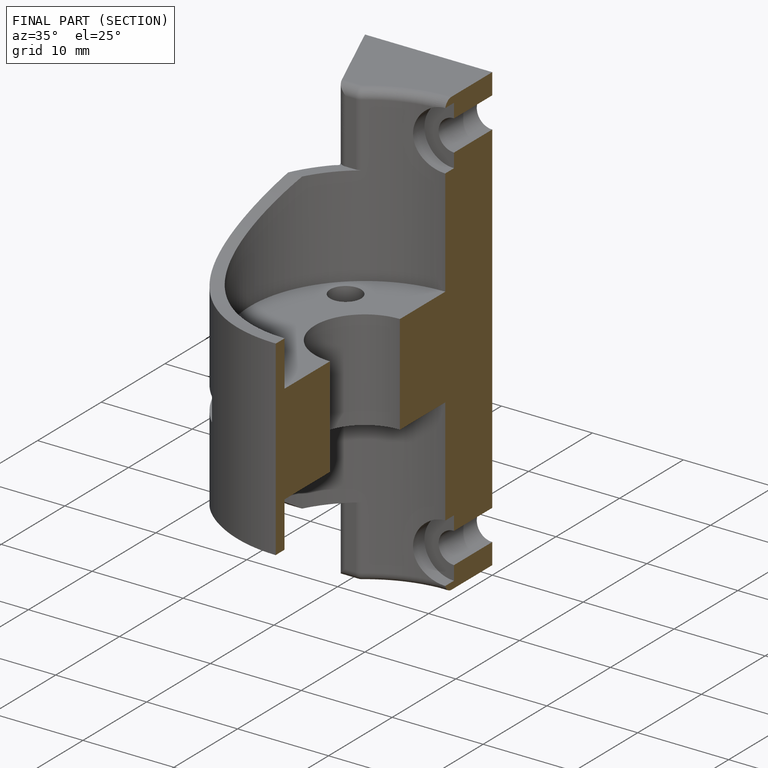
[diagram: finished part — half-section view (interior)]
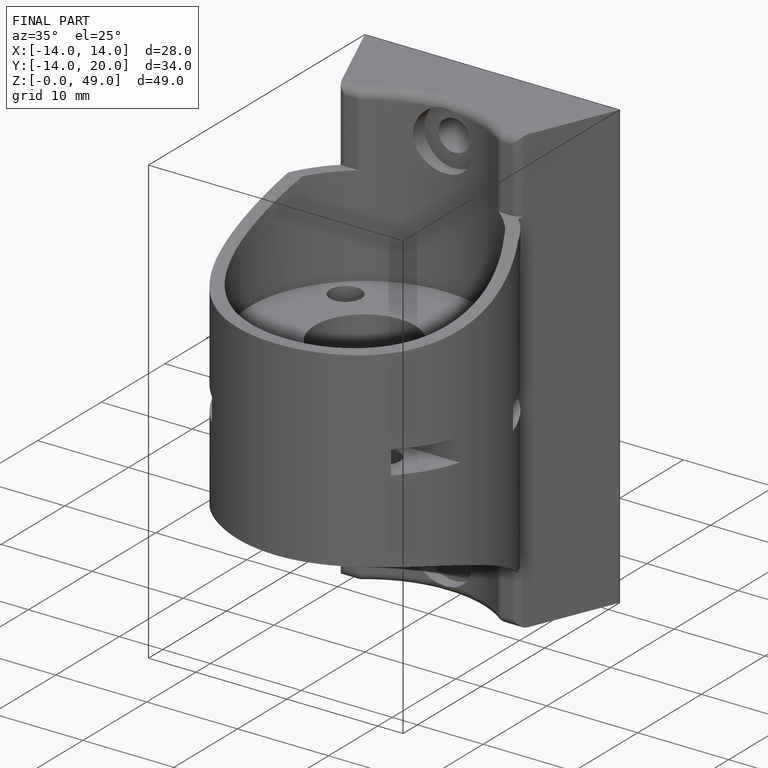
[diagram: finished part — iso view with bounding-box wireframe]
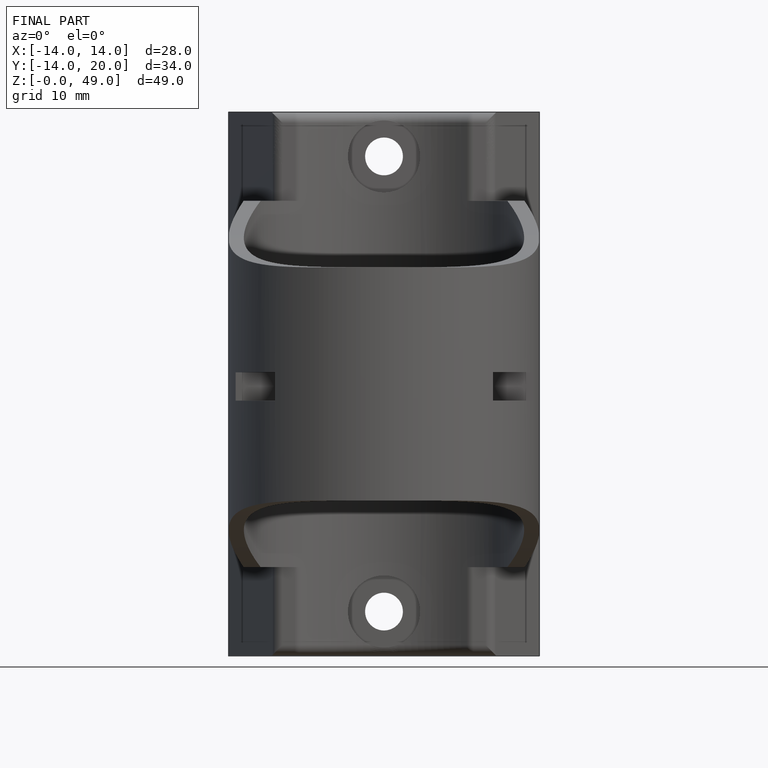
[diagram: finished part — front view with bounding-box wireframe]
